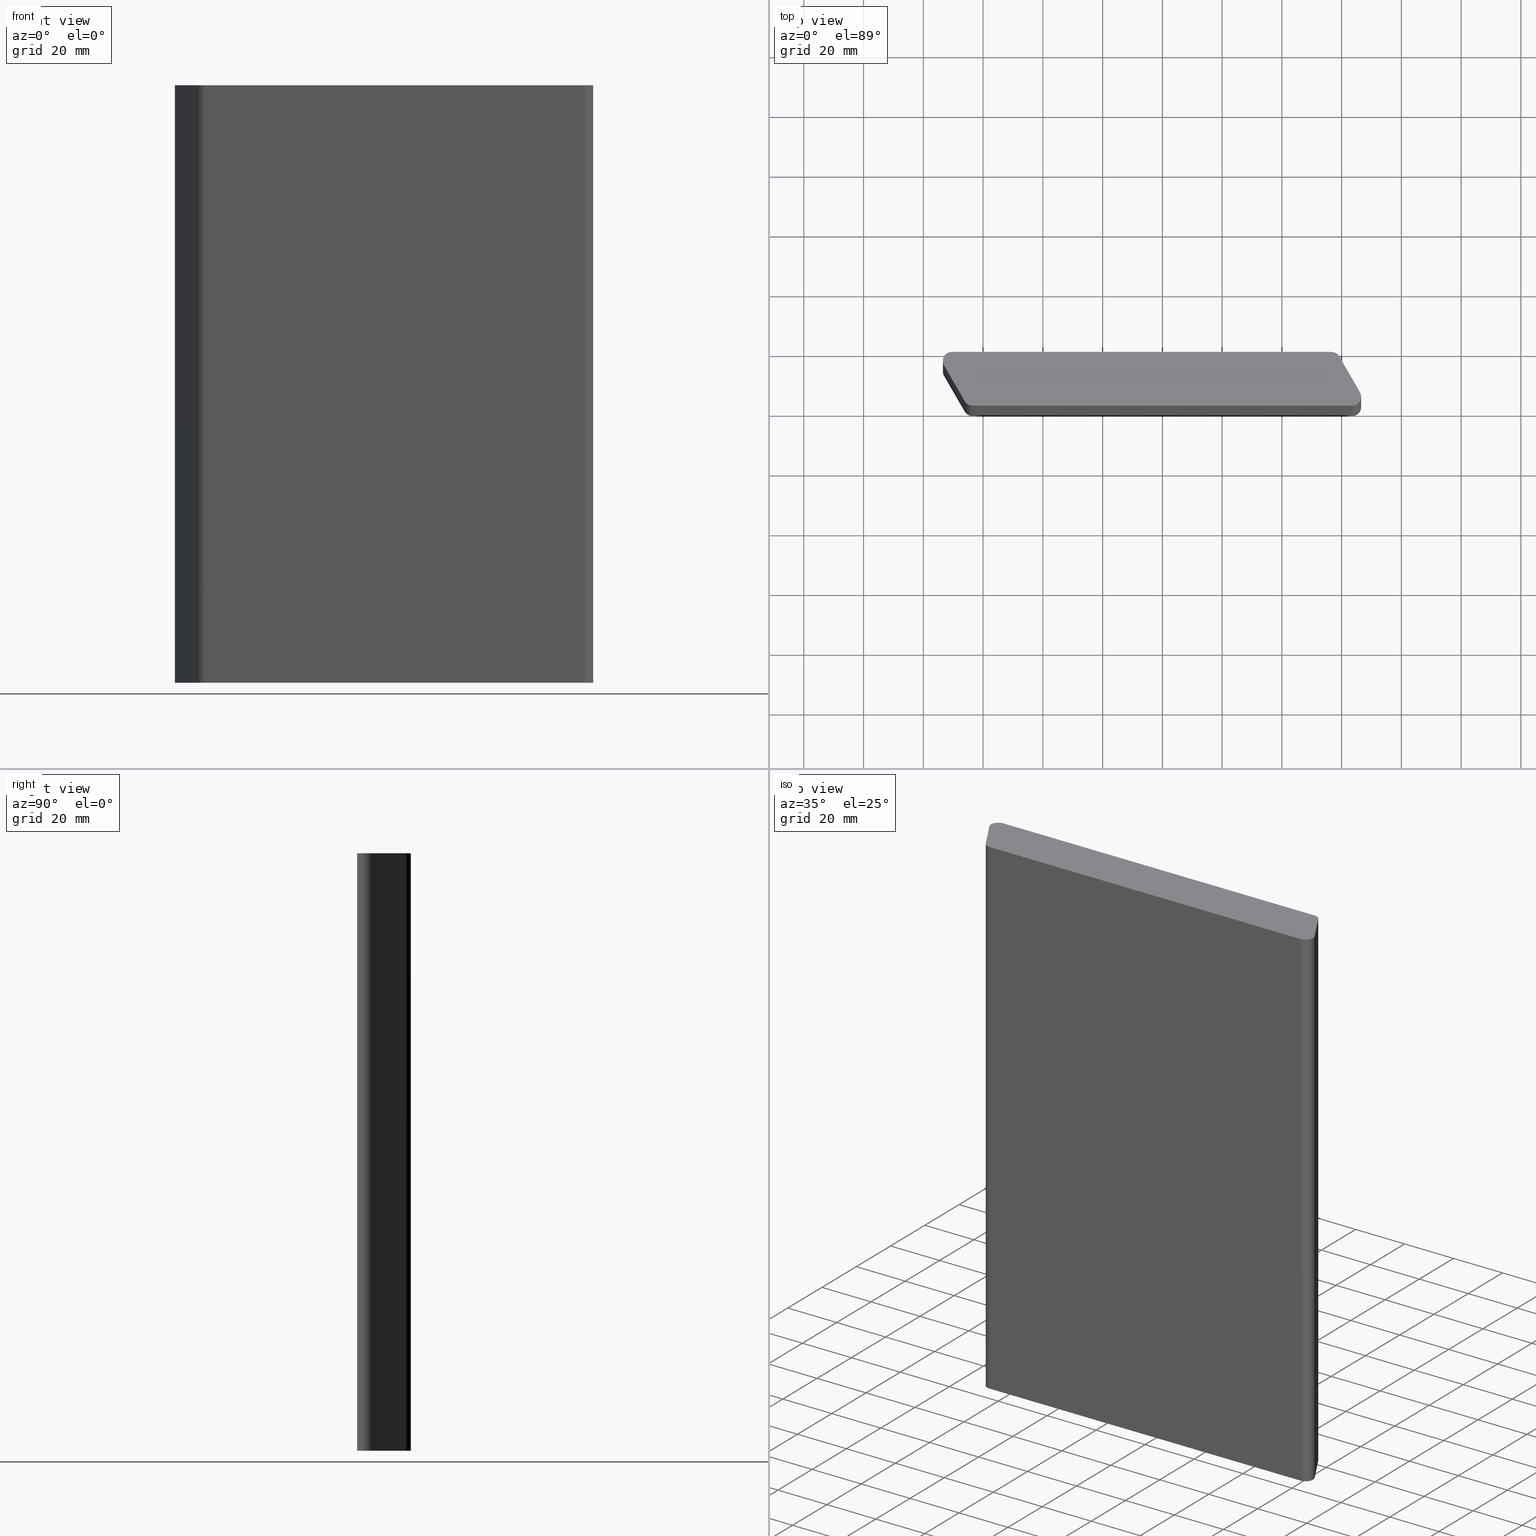
[diagram: canonical four-view strip — front | top / right | iso, engineering-drawing reading convention]
A machine part, canonical four-view strip (front | top / right | iso — engineering-drawing reading convention). The complete STEP part file that produces these views, byte-faithful:
ISO-10303-21;
HEADER;
/* Generated by software containing ST-Developer
 * from STEP Tools, Inc. (www.steptools.com) 
 */

FILE_DESCRIPTION(
/* description */ (''),
/* implementation_level */ '2;1');

FILE_NAME(
/* name */ 
'C:/Users/Eigenaar/Documents/Andrew/Ventura Welding (Workshop)/For Con
struction 2021/PlatoWood profile drawings/PlatoWood profiles, STEP/Pla
toWood 18x140 P07 (Rhombus).step',
/* time_stamp */ '2021-11-11T07:54:12+01:00',
/* author */ (''),
/* organization */ (''),
/* preprocessor_version */ 'ST-DEVELOPER v18.1',
/* originating_system */ 'Autodesk Translation Framework v10.10.0.1391',

/* authorisation */ '');

FILE_SCHEMA (('AUTOMOTIVE_DESIGN { 1 0 10303 214 3 1 1 }'));
ENDSEC;

DATA;
#10=MECHANICAL_DESIGN_GEOMETRIC_PRESENTATION_REPRESENTATION('',(#13),#323);
#11=SHAPE_REPRESENTATION_RELATIONSHIP('SRR','None',#330,#12);
#12=ADVANCED_BREP_SHAPE_REPRESENTATION('',(#14),#322);
#13=STYLED_ITEM('',(#340),#14);
#14=MANIFOLD_SOLID_BREP('Body1',#183);
#15=CIRCLE('',#199,3.00000000000001);
#16=CIRCLE('',#200,3.00000000000001);
#17=CIRCLE('',#203,3.);
#18=CIRCLE('',#204,3.);
#19=CIRCLE('',#207,2.99999999999999);
#20=CIRCLE('',#208,2.99999999999999);
#21=CIRCLE('',#211,3.);
#22=CIRCLE('',#212,3.);
#23=CYLINDRICAL_SURFACE('',#198,3.00000000000001);
#24=CYLINDRICAL_SURFACE('',#202,3.);
#25=CYLINDRICAL_SURFACE('',#206,2.99999999999999);
#26=CYLINDRICAL_SURFACE('',#210,3.);
#27=FACE_OUTER_BOUND('',#37,.T.);
#28=FACE_OUTER_BOUND('',#38,.T.);
#29=FACE_OUTER_BOUND('',#39,.T.);
#30=FACE_OUTER_BOUND('',#40,.T.);
#31=FACE_OUTER_BOUND('',#41,.T.);
#32=FACE_OUTER_BOUND('',#42,.T.);
#33=FACE_OUTER_BOUND('',#43,.T.);
#34=FACE_OUTER_BOUND('',#44,.T.);
#35=FACE_OUTER_BOUND('',#45,.T.);
#36=FACE_OUTER_BOUND('',#46,.T.);
#37=EDGE_LOOP('',(#119,#120,#121,#122));
#38=EDGE_LOOP('',(#123,#124,#125,#126));
#39=EDGE_LOOP('',(#127,#128,#129,#130));
#40=EDGE_LOOP('',(#131,#132,#133,#134));
#41=EDGE_LOOP('',(#135,#136,#137,#138));
#42=EDGE_LOOP('',(#139,#140,#141,#142));
#43=EDGE_LOOP('',(#143,#144,#145,#146));
#44=EDGE_LOOP('',(#147,#148,#149,#150));
#45=EDGE_LOOP('',(#151,#152,#153,#154,#155,#156,#157,#158));
#46=EDGE_LOOP('',(#159,#160,#161,#162,#163,#164,#165,#166));
#47=LINE('',#273,#63);
#48=LINE('',#275,#64);
#49=LINE('',#277,#65);
#50=LINE('',#278,#66);
#51=LINE('',#284,#67);
#52=LINE('',#287,#68);
#53=LINE('',#289,#69);
#54=LINE('',#290,#70);
#55=LINE('',#296,#71);
#56=LINE('',#299,#72);
#57=LINE('',#301,#73);
#58=LINE('',#302,#74);
#59=LINE('',#308,#75);
#60=LINE('',#311,#76);
#61=LINE('',#313,#77);
#62=LINE('',#314,#78);
#63=VECTOR('',#219,10.);
#64=VECTOR('',#220,10.);
#65=VECTOR('',#221,10.);
#66=VECTOR('',#222,10.);
#67=VECTOR('',#229,10.);
#68=VECTOR('',#232,10.);
#69=VECTOR('',#233,10.);
#70=VECTOR('',#234,10.);
#71=VECTOR('',#241,10.);
#72=VECTOR('',#244,10.);
#73=VECTOR('',#245,10.);
#74=VECTOR('',#246,10.);
#75=VECTOR('',#253,10.);
#76=VECTOR('',#256,10.);
#77=VECTOR('',#257,10.);
#78=VECTOR('',#258,10.);
#79=VERTEX_POINT('',#271);
#80=VERTEX_POINT('',#272);
#81=VERTEX_POINT('',#274);
#82=VERTEX_POINT('',#276);
#83=VERTEX_POINT('',#280);
#84=VERTEX_POINT('',#282);
#85=VERTEX_POINT('',#286);
#86=VERTEX_POINT('',#288);
#87=VERTEX_POINT('',#292);
#88=VERTEX_POINT('',#294);
#89=VERTEX_POINT('',#298);
#90=VERTEX_POINT('',#300);
#91=VERTEX_POINT('',#304);
#92=VERTEX_POINT('',#306);
#93=VERTEX_POINT('',#310);
#94=VERTEX_POINT('',#312);
#95=EDGE_CURVE('',#79,#80,#47,.T.);
#96=EDGE_CURVE('',#79,#81,#48,.T.);
#97=EDGE_CURVE('',#82,#81,#49,.T.);
#98=EDGE_CURVE('',#80,#82,#50,.T.);
#99=EDGE_CURVE('',#83,#80,#15,.T.);
#100=EDGE_CURVE('',#84,#82,#16,.T.);
#101=EDGE_CURVE('',#83,#84,#51,.T.);
#102=EDGE_CURVE('',#85,#83,#52,.T.);
#103=EDGE_CURVE('',#86,#84,#53,.T.);
#104=EDGE_CURVE('',#85,#86,#54,.T.);
#105=EDGE_CURVE('',#87,#85,#17,.T.);
#106=EDGE_CURVE('',#88,#86,#18,.T.);
#107=EDGE_CURVE('',#87,#88,#55,.T.);
#108=EDGE_CURVE('',#89,#87,#56,.T.);
#109=EDGE_CURVE('',#90,#88,#57,.T.);
#110=EDGE_CURVE('',#89,#90,#58,.T.);
#111=EDGE_CURVE('',#91,#89,#19,.T.);
#112=EDGE_CURVE('',#92,#90,#20,.T.);
#113=EDGE_CURVE('',#91,#92,#59,.T.);
#114=EDGE_CURVE('',#91,#93,#60,.T.);
#115=EDGE_CURVE('',#94,#92,#61,.T.);
#116=EDGE_CURVE('',#93,#94,#62,.T.);
#117=EDGE_CURVE('',#79,#93,#21,.T.);
#118=EDGE_CURVE('',#81,#94,#22,.T.);
#119=ORIENTED_EDGE('',*,*,#95,.F.);
#120=ORIENTED_EDGE('',*,*,#96,.T.);
#121=ORIENTED_EDGE('',*,*,#97,.F.);
#122=ORIENTED_EDGE('',*,*,#98,.F.);
#123=ORIENTED_EDGE('',*,*,#99,.T.);
#124=ORIENTED_EDGE('',*,*,#98,.T.);
#125=ORIENTED_EDGE('',*,*,#100,.F.);
#126=ORIENTED_EDGE('',*,*,#101,.F.);
#127=ORIENTED_EDGE('',*,*,#102,.T.);
#128=ORIENTED_EDGE('',*,*,#101,.T.);
#129=ORIENTED_EDGE('',*,*,#103,.F.);
#130=ORIENTED_EDGE('',*,*,#104,.F.);
#131=ORIENTED_EDGE('',*,*,#105,.T.);
#132=ORIENTED_EDGE('',*,*,#104,.T.);
#133=ORIENTED_EDGE('',*,*,#106,.F.);
#134=ORIENTED_EDGE('',*,*,#107,.F.);
#135=ORIENTED_EDGE('',*,*,#108,.T.);
#136=ORIENTED_EDGE('',*,*,#107,.T.);
#137=ORIENTED_EDGE('',*,*,#109,.F.);
#138=ORIENTED_EDGE('',*,*,#110,.F.);
#139=ORIENTED_EDGE('',*,*,#111,.T.);
#140=ORIENTED_EDGE('',*,*,#110,.T.);
#141=ORIENTED_EDGE('',*,*,#112,.F.);
#142=ORIENTED_EDGE('',*,*,#113,.F.);
#143=ORIENTED_EDGE('',*,*,#114,.F.);
#144=ORIENTED_EDGE('',*,*,#113,.T.);
#145=ORIENTED_EDGE('',*,*,#115,.F.);
#146=ORIENTED_EDGE('',*,*,#116,.F.);
#147=ORIENTED_EDGE('',*,*,#117,.T.);
#148=ORIENTED_EDGE('',*,*,#116,.T.);
#149=ORIENTED_EDGE('',*,*,#118,.F.);
#150=ORIENTED_EDGE('',*,*,#96,.F.);
#151=ORIENTED_EDGE('',*,*,#118,.T.);
#152=ORIENTED_EDGE('',*,*,#115,.T.);
#153=ORIENTED_EDGE('',*,*,#112,.T.);
#154=ORIENTED_EDGE('',*,*,#109,.T.);
#155=ORIENTED_EDGE('',*,*,#106,.T.);
#156=ORIENTED_EDGE('',*,*,#103,.T.);
#157=ORIENTED_EDGE('',*,*,#100,.T.);
#158=ORIENTED_EDGE('',*,*,#97,.T.);
#159=ORIENTED_EDGE('',*,*,#117,.F.);
#160=ORIENTED_EDGE('',*,*,#95,.T.);
#161=ORIENTED_EDGE('',*,*,#99,.F.);
#162=ORIENTED_EDGE('',*,*,#102,.F.);
#163=ORIENTED_EDGE('',*,*,#105,.F.);
#164=ORIENTED_EDGE('',*,*,#108,.F.);
#165=ORIENTED_EDGE('',*,*,#111,.F.);
#166=ORIENTED_EDGE('',*,*,#114,.T.);
#167=PLANE('',#197);
#168=PLANE('',#201);
#169=PLANE('',#205);
#170=PLANE('',#209);
#171=PLANE('',#213);
#172=PLANE('',#214);
#173=ADVANCED_FACE('',(#27),#167,.T.);
#174=ADVANCED_FACE('',(#28),#23,.T.);
#175=ADVANCED_FACE('',(#29),#168,.T.);
#176=ADVANCED_FACE('',(#30),#24,.T.);
#177=ADVANCED_FACE('',(#31),#169,.T.);
#178=ADVANCED_FACE('',(#32),#25,.T.);
#179=ADVANCED_FACE('',(#33),#170,.T.);
#180=ADVANCED_FACE('',(#34),#26,.T.);
#181=ADVANCED_FACE('',(#35),#171,.T.);
#182=ADVANCED_FACE('',(#36),#172,.F.);
#183=CLOSED_SHELL('',(#173,#174,#175,#176,#177,#178,#179,#180,#181,#182));
#184=DERIVED_UNIT_ELEMENT(#186,1.);
#185=DERIVED_UNIT_ELEMENT(#325,-3.);
#186=(
MASS_UNIT()
NAMED_UNIT(*)
SI_UNIT(.KILO.,.GRAM.)
);
#187=DERIVED_UNIT((#184,#185));
#188=MEASURE_REPRESENTATION_ITEM('density measure',
POSITIVE_RATIO_MEASURE(7850.),#187);
#189=PROPERTY_DEFINITION_REPRESENTATION(#194,#191);
#190=PROPERTY_DEFINITION_REPRESENTATION(#195,#192);
#191=REPRESENTATION('material name',(#193),#322);
#192=REPRESENTATION('density',(#188),#322);
#193=DESCRIPTIVE_REPRESENTATION_ITEM('Steel','Steel');
#194=PROPERTY_DEFINITION('material property','material name',#332);
#195=PROPERTY_DEFINITION('material property','density of part',#332);
#196=AXIS2_PLACEMENT_3D('placement',#269,#215,#216);
#197=AXIS2_PLACEMENT_3D('',#270,#217,#218);
#198=AXIS2_PLACEMENT_3D('',#279,#223,#224);
#199=AXIS2_PLACEMENT_3D('',#281,#225,#226);
#200=AXIS2_PLACEMENT_3D('',#283,#227,#228);
#201=AXIS2_PLACEMENT_3D('',#285,#230,#231);
#202=AXIS2_PLACEMENT_3D('',#291,#235,#236);
#203=AXIS2_PLACEMENT_3D('',#293,#237,#238);
#204=AXIS2_PLACEMENT_3D('',#295,#239,#240);
#205=AXIS2_PLACEMENT_3D('',#297,#242,#243);
#206=AXIS2_PLACEMENT_3D('',#303,#247,#248);
#207=AXIS2_PLACEMENT_3D('',#305,#249,#250);
#208=AXIS2_PLACEMENT_3D('',#307,#251,#252);
#209=AXIS2_PLACEMENT_3D('',#309,#254,#255);
#210=AXIS2_PLACEMENT_3D('',#315,#259,#260);
#211=AXIS2_PLACEMENT_3D('',#316,#261,#262);
#212=AXIS2_PLACEMENT_3D('',#317,#263,#264);
#213=AXIS2_PLACEMENT_3D('',#318,#265,#266);
#214=AXIS2_PLACEMENT_3D('',#319,#267,#268);
#215=DIRECTION('axis',(0.,0.,1.));
#216=DIRECTION('refdir',(1.,0.,0.));
#217=DIRECTION('center_axis',(-1.95399507220231E-9,1.,0.));
#218=DIRECTION('ref_axis',(-1.,-1.95399507220231E-9,0.));
#219=DIRECTION('',(1.,1.95399507220231E-9,0.));
#220=DIRECTION('',(0.,0.,1.));
#221=DIRECTION('',(-1.,-1.95399507220231E-9,0.));
#222=DIRECTION('',(0.,0.,1.));
#223=DIRECTION('center_axis',(0.,0.,1.));
#224=DIRECTION('ref_axis',(0.866025402866326,0.500000001590219,0.));
#225=DIRECTION('center_axis',(0.,0.,1.));
#226=DIRECTION('ref_axis',(0.866025402866326,0.500000001590219,0.));
#227=DIRECTION('center_axis',(0.,0.,1.));
#228=DIRECTION('ref_axis',(0.866025402866326,0.500000001590219,0.));
#229=DIRECTION('',(0.,0.,1.));
#230=DIRECTION('center_axis',(0.866025402866325,0.500000001590219,0.));
#231=DIRECTION('ref_axis',(-0.500000001590219,0.866025402866325,0.));
#232=DIRECTION('',(-0.500000001590219,0.866025402866325,0.));
#233=DIRECTION('',(-0.500000001590219,0.866025402866325,0.));
#234=DIRECTION('',(0.,0.,1.));
#235=DIRECTION('center_axis',(0.,0.,1.));
#236=DIRECTION('ref_axis',(1.8362259860775E-9,-1.,0.));
#237=DIRECTION('center_axis',(0.,0.,1.));
#238=DIRECTION('ref_axis',(1.8362259860775E-9,-1.,0.));
#239=DIRECTION('center_axis',(0.,0.,1.));
#240=DIRECTION('ref_axis',(1.8362259860775E-9,-1.,0.));
#241=DIRECTION('',(0.,0.,1.));
#242=DIRECTION('center_axis',(1.83622643745109E-9,-1.,0.));
#243=DIRECTION('ref_axis',(1.,1.83622643745109E-9,0.));
#244=DIRECTION('',(1.,1.83622643745109E-9,0.));
#245=DIRECTION('',(1.,1.83622643745109E-9,0.));
#246=DIRECTION('',(0.,0.,1.));
#247=DIRECTION('center_axis',(0.,0.,1.));
#248=DIRECTION('ref_axis',(-0.866025403784439,-0.5,0.));
#249=DIRECTION('center_axis',(0.,0.,1.));
#250=DIRECTION('ref_axis',(-0.866025403784439,-0.5,0.));
#251=DIRECTION('center_axis',(0.,0.,1.));
#252=DIRECTION('ref_axis',(-0.866025403784439,-0.5,0.));
#253=DIRECTION('',(0.,0.,1.));
#254=DIRECTION('center_axis',(-0.866025403784439,-0.5,0.));
#255=DIRECTION('ref_axis',(0.5,-0.866025403784439,0.));
#256=DIRECTION('',(-0.5,0.866025403784439,0.));
#257=DIRECTION('',(0.5,-0.866025403784439,0.));
#258=DIRECTION('',(0.,0.,1.));
#259=DIRECTION('center_axis',(0.,0.,1.));
#260=DIRECTION('ref_axis',(-1.95399548393501E-9,1.,0.));
#261=DIRECTION('center_axis',(0.,0.,1.));
#262=DIRECTION('ref_axis',(-1.95399548393501E-9,1.,0.));
#263=DIRECTION('center_axis',(0.,0.,1.));
#264=DIRECTION('ref_axis',(-1.95399548393501E-9,1.,0.));
#265=DIRECTION('center_axis',(0.,0.,1.));
#266=DIRECTION('ref_axis',(1.,0.,0.));
#267=DIRECTION('center_axis',(0.,0.,1.));
#268=DIRECTION('ref_axis',(1.,0.,0.));
#269=CARTESIAN_POINT('',(0.,0.,0.));
#270=CARTESIAN_POINT('Origin',(56.6076951217249,18.0000001125459,0.));
#271=CARTESIAN_POINT('',(-70.4641016209989,17.9999998642482,0.));
#272=CARTESIAN_POINT('',(56.6076951217249,18.0000001125459,0.));
#273=CARTESIAN_POINT('',(-70.4641016209989,17.9999998642482,0.));
#274=CARTESIAN_POINT('',(-70.4641016209989,17.9999998642482,200.));
#275=CARTESIAN_POINT('',(-70.4641016209989,17.9999998642482,0.));
#276=CARTESIAN_POINT('',(56.6076951217249,18.0000001125459,200.));
#277=CARTESIAN_POINT('',(-70.4641016209989,17.9999998642482,200.));
#278=CARTESIAN_POINT('',(56.6076951217249,18.0000001125459,0.));
#279=CARTESIAN_POINT('Origin',(56.6076951275869,15.0000001125459,0.));
#280=CARTESIAN_POINT('',(59.2057713361858,16.5000001173165,0.));
#281=CARTESIAN_POINT('Origin',(56.6076951275869,15.0000001125459,0.));
#282=CARTESIAN_POINT('',(59.2057713361858,16.5000001173165,200.));
#283=CARTESIAN_POINT('Origin',(56.6076951275869,15.0000001125459,200.));
#284=CARTESIAN_POINT('',(59.2057713361858,16.5000001173165,0.));
#285=CARTESIAN_POINT('Origin',(66.1339745934621,4.50000012143695,0.));
#286=CARTESIAN_POINT('',(66.1339745934621,4.50000012143695,0.));
#287=CARTESIAN_POINT('',(66.1339745934621,4.50000012143695,0.));
#288=CARTESIAN_POINT('',(66.133974593462,4.50000012143695,200.));
#289=CARTESIAN_POINT('',(66.1339745934621,4.50000012143695,200.));
#290=CARTESIAN_POINT('',(66.1339745934621,4.50000012143695,0.));
#291=CARTESIAN_POINT('Origin',(63.5358983848631,3.0000001166663,0.));
#292=CARTESIAN_POINT('',(63.5358983903718,1.16666296623436E-7,0.));
#293=CARTESIAN_POINT('Origin',(63.5358983848631,3.0000001166663,0.));
#294=CARTESIAN_POINT('',(63.5358983903718,1.16666296623436E-7,200.));
#295=CARTESIAN_POINT('Origin',(63.5358983848631,3.0000001166663,200.));
#296=CARTESIAN_POINT('',(63.5358983903718,1.16666296623436E-7,0.));
#297=CARTESIAN_POINT('Origin',(-63.5358983903717,-1.16666296351607E-7,0.));
#298=CARTESIAN_POINT('',(-63.5358983903717,-1.16666296623436E-7,0.));
#299=CARTESIAN_POINT('',(-63.5358983903717,-1.16666296351607E-7,0.));
#300=CARTESIAN_POINT('',(-63.5358983903717,-1.16666296623436E-7,200.));
#301=CARTESIAN_POINT('',(-63.5358983903717,-1.16666296351607E-7,200.));
#302=CARTESIAN_POINT('',(-63.5358983903717,-1.16666296623436E-7,0.));
#303=CARTESIAN_POINT('Origin',(-63.5358983958804,2.9999998833337,0.));
#304=CARTESIAN_POINT('',(-66.1339746072337,1.4999998833337,0.));
#305=CARTESIAN_POINT('Origin',(-63.5358983958804,2.9999998833337,0.));
#306=CARTESIAN_POINT('',(-66.1339746072337,1.4999998833337,200.));
#307=CARTESIAN_POINT('Origin',(-63.5358983958804,2.9999998833337,200.));
#308=CARTESIAN_POINT('',(-66.1339746072337,1.4999998833337,0.));
#309=CARTESIAN_POINT('Origin',(-73.0621778264902,13.4999998642482,0.));
#310=CARTESIAN_POINT('',(-73.0621778264902,13.4999998642482,0.));
#311=CARTESIAN_POINT('',(-66.1339746072337,1.4999998833337,0.));
#312=CARTESIAN_POINT('',(-73.0621778264902,13.4999998642482,200.));
#313=CARTESIAN_POINT('',(-66.1339746072337,1.4999998833337,200.));
#314=CARTESIAN_POINT('',(-73.0621778264902,13.4999998642482,0.));
#315=CARTESIAN_POINT('Origin',(-70.4641016151369,14.9999998642482,0.));
#316=CARTESIAN_POINT('Origin',(-70.4641016151369,14.9999998642482,0.));
#317=CARTESIAN_POINT('Origin',(-70.4641016151369,14.9999998642482,200.));
#318=CARTESIAN_POINT('Origin',(-3.46410161513692,8.9999999979398,200.));
#319=CARTESIAN_POINT('Origin',(-3.46410161513692,8.9999999979398,0.));
#320=UNCERTAINTY_MEASURE_WITH_UNIT(LENGTH_MEASURE(0.01),#324,
'DISTANCE_ACCURACY_VALUE',
'Maximum model space distance between geometric entities at asserted c
onnectivities');
#321=UNCERTAINTY_MEASURE_WITH_UNIT(LENGTH_MEASURE(0.01),#324,
'DISTANCE_ACCURACY_VALUE',
'Maximum model space distance between geometric entities at asserted c
onnectivities');
#322=(
GEOMETRIC_REPRESENTATION_CONTEXT(3)
GLOBAL_UNCERTAINTY_ASSIGNED_CONTEXT((#320))
GLOBAL_UNIT_ASSIGNED_CONTEXT((#324,#326,#327))
REPRESENTATION_CONTEXT('','3D')
);
#323=(
GEOMETRIC_REPRESENTATION_CONTEXT(3)
GLOBAL_UNCERTAINTY_ASSIGNED_CONTEXT((#321))
GLOBAL_UNIT_ASSIGNED_CONTEXT((#324,#326,#327))
REPRESENTATION_CONTEXT('','3D')
);
#324=(
LENGTH_UNIT()
NAMED_UNIT(*)
SI_UNIT(.MILLI.,.METRE.)
);
#325=(
LENGTH_UNIT()
NAMED_UNIT(*)
SI_UNIT($,.METRE.)
);
#326=(
NAMED_UNIT(*)
PLANE_ANGLE_UNIT()
SI_UNIT($,.RADIAN.)
);
#327=(
NAMED_UNIT(*)
SI_UNIT($,.STERADIAN.)
SOLID_ANGLE_UNIT()
);
#328=SHAPE_DEFINITION_REPRESENTATION(#329,#330);
#329=PRODUCT_DEFINITION_SHAPE('',$,#332);
#330=SHAPE_REPRESENTATION('',(#196),#322);
#331=PRODUCT_DEFINITION_CONTEXT('part definition',#336,'design');
#332=PRODUCT_DEFINITION('PlatoWood 18x140 P07 (Rhombus)',
'PlatoWood 18x140 P07 (Rhombus) v1',#333,#331);
#333=PRODUCT_DEFINITION_FORMATION('',$,#338);
#334=PRODUCT_RELATED_PRODUCT_CATEGORY(
'PlatoWood 18x140 P07 (Rhombus) v1','PlatoWood 18x140 P07 (Rhombus) v1',
(#338));
#335=APPLICATION_PROTOCOL_DEFINITION('international standard',
'automotive_design',2009,#336);
#336=APPLICATION_CONTEXT(
'Core Data for Automotive Mechanical Design Process');
#337=PRODUCT_CONTEXT('part definition',#336,'mechanical');
#338=PRODUCT('PlatoWood 18x140 P07 (Rhombus)',
'PlatoWood 18x140 P07 (Rhombus) v1',$,(#337));
#339=PRESENTATION_STYLE_ASSIGNMENT((#341));
#340=PRESENTATION_STYLE_ASSIGNMENT((#342));
#341=SURFACE_STYLE_USAGE(.BOTH.,#343);
#342=SURFACE_STYLE_USAGE(.BOTH.,#344);
#343=SURFACE_SIDE_STYLE('',(#345));
#344=SURFACE_SIDE_STYLE('',(#346));
#345=SURFACE_STYLE_FILL_AREA(#347);
#346=SURFACE_STYLE_FILL_AREA(#348);
#347=FILL_AREA_STYLE('Steel - Satin',(#349));
#348=FILL_AREA_STYLE('3D Mahogany - Unfinished',(#350));
#349=FILL_AREA_STYLE_COLOUR('Steel - Satin',#351);
#350=FILL_AREA_STYLE_COLOUR('3D Mahogany - Unfinished',#352);
#351=COLOUR_RGB('Steel - Satin',0.627450980392157,0.627450980392157,0.627450980392157);
#352=COLOUR_RGB('3D Mahogany - Unfinished',0.568627450980392,0.407843137254902,
0.313725490196078);
ENDSEC;
END-ISO-10303-21;
